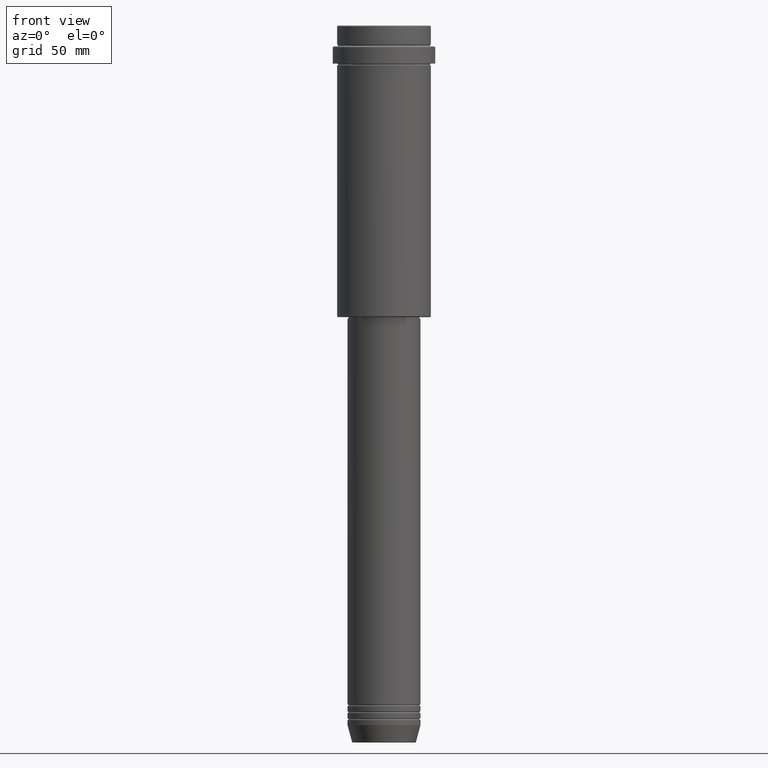
[diagram: clean part render]
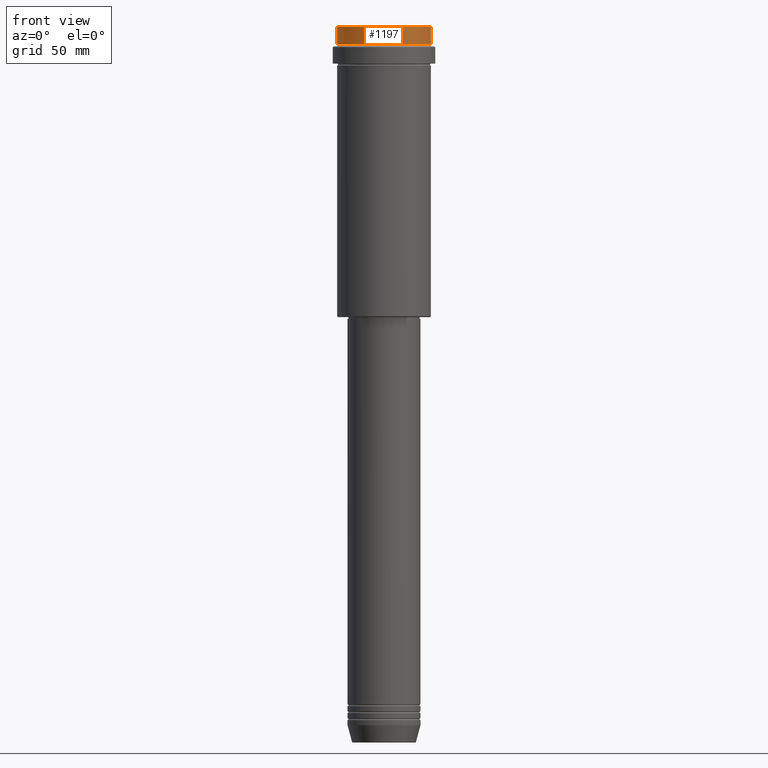
[diagram: same view with one face highlighted and labeled with its STEP entity id]
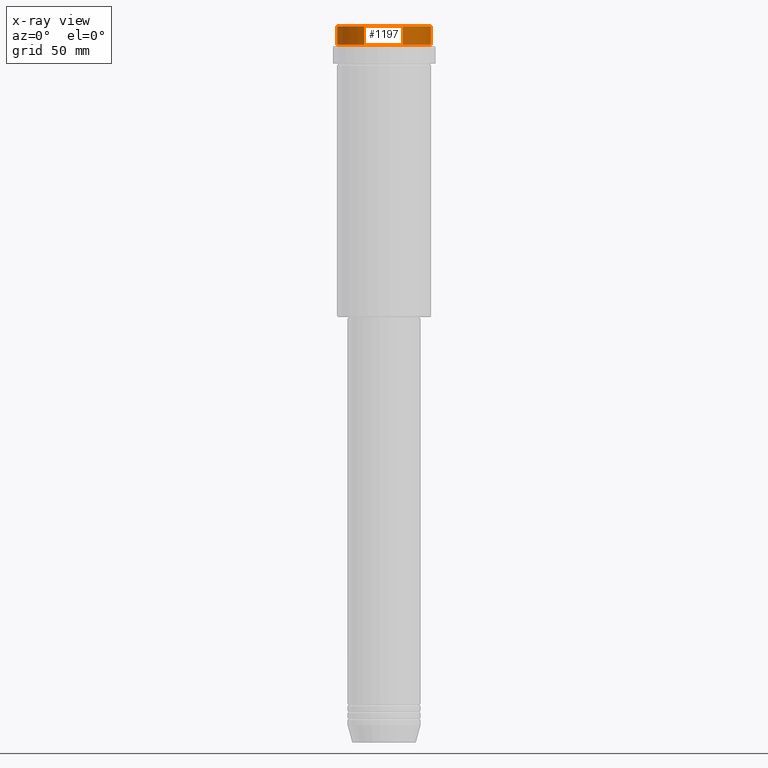
[diagram: x-ray of the same camera — body ghosted, the highlighted face saturated]
A machine part, front view. The second image highlights one B-rep face of the part: STEP entity #1197.
The next image is the same camera in x-ray: the body ghosted, the highlighted face saturated — about 0% of this face is hidden behind the body in this view.
In plain terms, the highlighted cylindrical surface (partial cylindrical patch) has radius 27 mm, axis along (-0, -0, 1).
Its self-contained STEP definition (entity closure, byte-faithful):
#29 = CARTESIAN_POINT ( 'NONE',  ( 27.00000000000000355, 0.000000000000000000, -11.00000000000000178 ) ) ;
#89 = AXIS2_PLACEMENT_3D ( 'NONE', #196, #407, #934 ) ;
#90 = CARTESIAN_POINT ( 'NONE',  ( 27.00000000000000355, 0.000000000000000000, -0.4999999999999241163 ) ) ;
#92 = VERTEX_POINT ( 'NONE', #736 ) ;
#128 = ORIENTED_EDGE ( 'NONE', *, *, #353, .T. ) ;
#144 = LINE ( 'NONE', #1343, #1005 ) ;
#196 = CARTESIAN_POINT ( 'NONE',  ( 0.000000000000000000, 0.000000000000000000, -11.00000000000000178 ) ) ;
#288 = ORIENTED_EDGE ( 'NONE', *, *, #547, .F. ) ;
#319 = CIRCLE ( 'NONE', #1096, 27.00000000000000355 ) ;
#345 = LINE ( 'NONE', #1338, #745 ) ;
#353 = EDGE_CURVE ( 'NONE', #731, #1111, #876, .T. ) ;
#407 = DIRECTION ( 'NONE',  ( -0.000000000000000000, -0.000000000000000000, 1.000000000000000000 ) ) ;
#462 = ORIENTED_EDGE ( 'NONE', *, *, #1268, .T. ) ;
#481 = EDGE_CURVE ( 'NONE', #1111, #644, #345, .T. ) ;
#489 = ORIENTED_EDGE ( 'NONE', *, *, #481, .T. ) ;
#547 = EDGE_CURVE ( 'NONE', #731, #92, #144, .T. ) ;
#596 = DIRECTION ( 'NONE',  ( 1.000000000000000000, 0.000000000000000000, 0.000000000000000000 ) ) ;
#604 = DIRECTION ( 'NONE',  ( 1.000000000000000000, 0.000000000000000000, 0.000000000000000000 ) ) ;
#636 = CARTESIAN_POINT ( 'NONE',  ( -27.00000000000000355, 3.306546357697854128E-15, -11.00000000000000178 ) ) ;
#644 = VERTEX_POINT ( 'NONE', #90 ) ;
#696 = DIRECTION ( 'NONE',  ( -0.000000000000000000, -0.000000000000000000, 1.000000000000000000 ) ) ;
#731 = VERTEX_POINT ( 'NONE', #636 ) ;
#736 = CARTESIAN_POINT ( 'NONE',  ( -27.00000000000000355, 3.306546357697854128E-15, -0.4999999999999241163 ) ) ;
#745 = VECTOR ( 'NONE', #996, 1000.000000000000000 ) ;
#796 = CARTESIAN_POINT ( 'NONE',  ( 0.000000000000000000, 0.000000000000000000, 0.000000000000000000 ) ) ;
#876 = CIRCLE ( 'NONE', #89, 27.00000000000000355 ) ;
#887 = FACE_OUTER_BOUND ( 'NONE', #1064, .T. ) ;
#898 = DIRECTION ( 'NONE',  ( 0.000000000000000000, 0.000000000000000000, -1.000000000000000000 ) ) ;
#934 = DIRECTION ( 'NONE',  ( 1.000000000000000000, 0.000000000000000000, 0.000000000000000000 ) ) ;
#996 = DIRECTION ( 'NONE',  ( -0.000000000000000000, -0.000000000000000000, 1.000000000000000000 ) ) ;
#1005 = VECTOR ( 'NONE', #696, 1000.000000000000000 ) ;
#1032 = AXIS2_PLACEMENT_3D ( 'NONE', #796, #1222, #596 ) ;
#1064 = EDGE_LOOP ( 'NONE', ( #288, #128, #489, #462 ) ) ;
#1096 = AXIS2_PLACEMENT_3D ( 'NONE', #1116, #898, #604 ) ;
#1111 = VERTEX_POINT ( 'NONE', #29 ) ;
#1116 = CARTESIAN_POINT ( 'NONE',  ( 0.000000000000000000, 0.000000000000000000, -0.4999999999999241163 ) ) ;
#1197 = ADVANCED_FACE ( 'NONE', ( #887 ), #1207, .T. ) ;
#1207 = CYLINDRICAL_SURFACE ( 'NONE', #1032, 27.00000000000000355 ) ;
#1222 = DIRECTION ( 'NONE',  ( -0.000000000000000000, -0.000000000000000000, 1.000000000000000000 ) ) ;
#1268 = EDGE_CURVE ( 'NONE', #644, #92, #319, .T. ) ;
#1338 = CARTESIAN_POINT ( 'NONE',  ( 27.00000000000000355, 0.000000000000000000, 0.000000000000000000 ) ) ;
#1343 = CARTESIAN_POINT ( 'NONE',  ( -27.00000000000000355, 3.306546357697854128E-15, 0.000000000000000000 ) ) ;